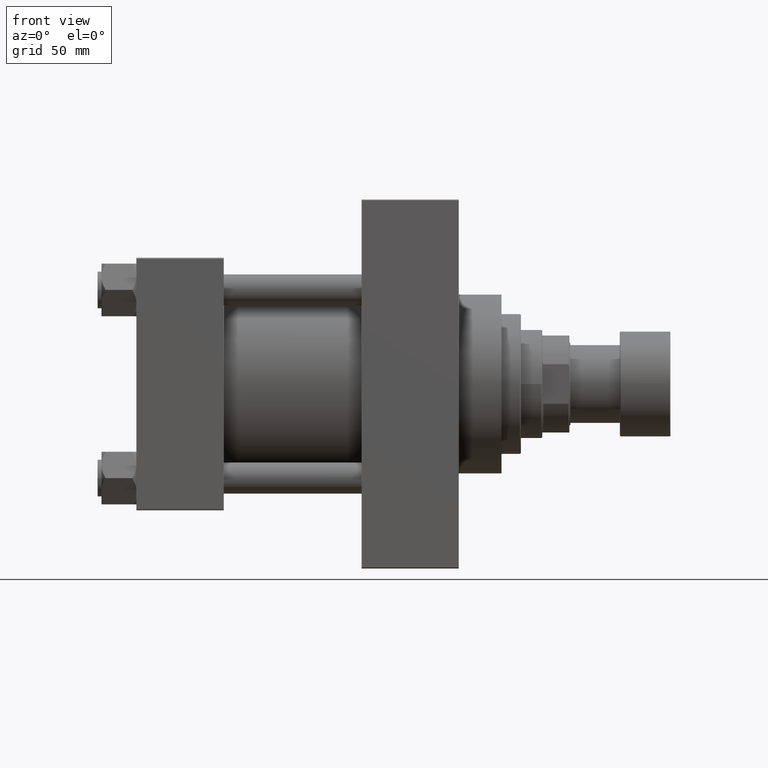
[diagram: clean part render]
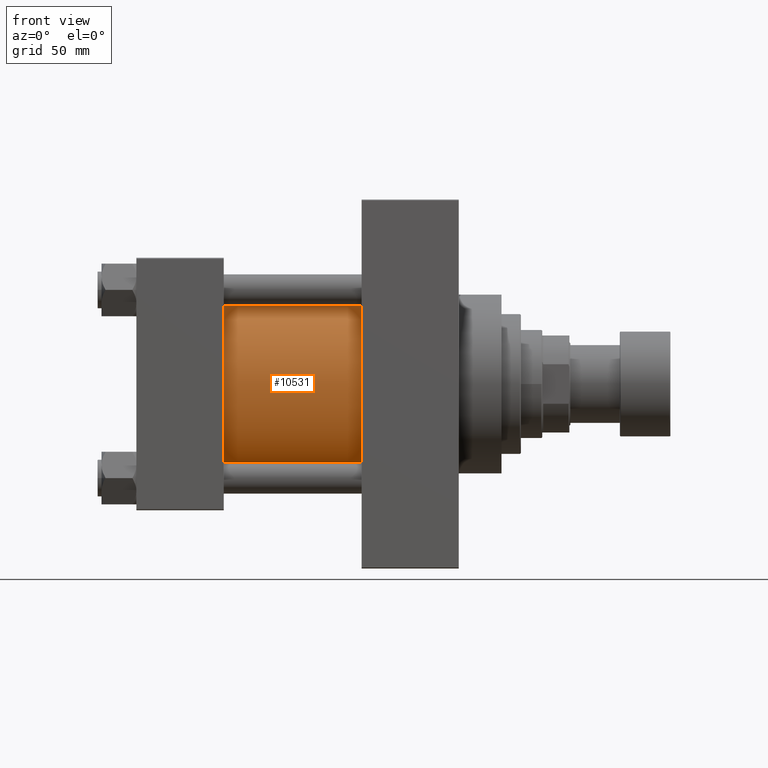
[diagram: same view with one face highlighted and labeled with its STEP entity id]
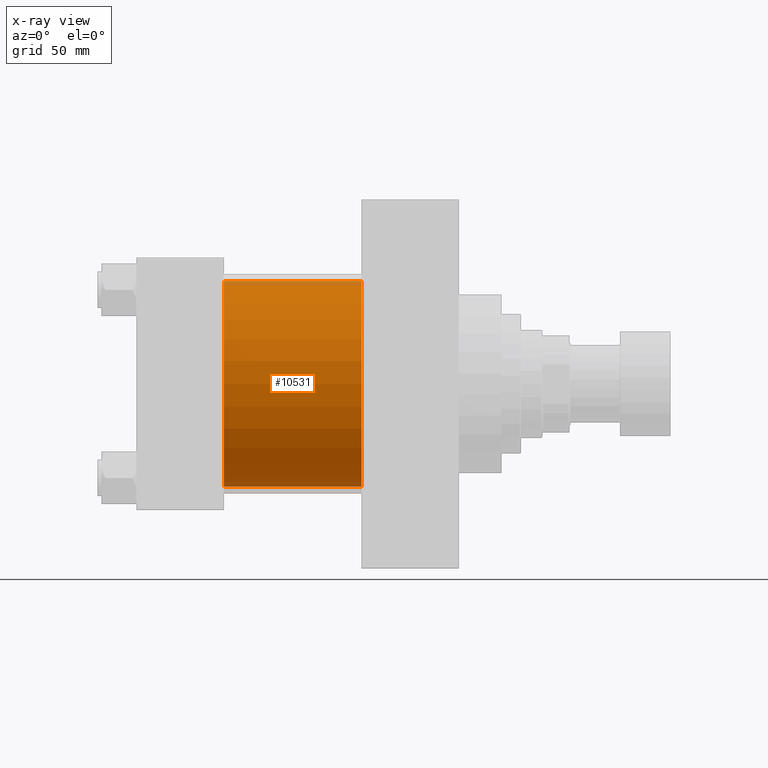
[diagram: x-ray of the same camera — body ghosted, the highlighted face saturated]
A machine part, front view. The second image highlights one B-rep face of the part: STEP entity #10531.
The next image is the same camera in x-ray: the body ghosted, the highlighted face saturated — about 4% of this face is hidden behind the body in this view.
In plain terms, the highlighted cylindrical surface (partial cylindrical patch) has radius 53 mm, axis along (-1, -0, -0).
Its self-contained STEP definition (entity closure, byte-faithful):
#463 = ORIENTED_EDGE ( 'NONE', *, *, #6820, .F. ) ;
#2272 = ORIENTED_EDGE ( 'NONE', *, *, #30312, .T. ) ;
#3360 = LINE ( 'NONE', #19372, #21230 ) ;
#3834 = DIRECTION ( 'NONE',  ( -1.000000000000000000, -0.000000000000000000, -0.000000000000000000 ) ) ;
#6820 = EDGE_CURVE ( 'NONE', #24679, #11016, #3360, .T. ) ;
#7074 = VECTOR ( 'NONE', #19085, 1000.000000000000000 ) ;
#8284 = CARTESIAN_POINT ( 'NONE',  ( 115.9999999999999858, -2.602085213965210642E-15, 53.00000000000000711 ) ) ;
#9305 = EDGE_LOOP ( 'NONE', ( #463, #30117, #2272, #16166 ) ) ;
#10531 = ADVANCED_FACE ( 'NONE', ( #23166 ), #31807, .T. ) ;
#10831 = CARTESIAN_POINT ( 'NONE',  ( 45.00000000000000000, -2.602085213965210642E-15, 53.00000000000000711 ) ) ;
#11016 = VERTEX_POINT ( 'NONE', #45999 ) ;
#12052 = DIRECTION ( 'NONE',  ( 0.000000000000000000, 0.000000000000000000, 1.000000000000000000 ) ) ;
#15107 = EDGE_CURVE ( 'NONE', #27340, #24679, #33269, .T. ) ;
#15513 = DIRECTION ( 'NONE',  ( 0.000000000000000000, 0.000000000000000000, 1.000000000000000000 ) ) ;
#16166 = ORIENTED_EDGE ( 'NONE', *, *, #43742, .T. ) ;
#18952 = AXIS2_PLACEMENT_3D ( 'NONE', #38690, #3834, #15513 ) ;
#19085 = DIRECTION ( 'NONE',  ( -1.000000000000000000, -0.000000000000000000, -0.000000000000000000 ) ) ;
#19372 = CARTESIAN_POINT ( 'NONE',  ( 115.9999999999999858, 3.888542821515762466E-15, -53.00000000000000711 ) ) ;
#21230 = VECTOR ( 'NONE', #31104, 1000.000000000000000 ) ;
#21890 = AXIS2_PLACEMENT_3D ( 'NONE', #45076, #21924, #37451 ) ;
#21924 = DIRECTION ( 'NONE',  ( 1.000000000000000000, 0.000000000000000000, 0.000000000000000000 ) ) ;
#23166 = FACE_OUTER_BOUND ( 'NONE', #9305, .T. ) ;
#24679 = VERTEX_POINT ( 'NONE', #46227 ) ;
#26334 = VERTEX_POINT ( 'NONE', #10831 ) ;
#27089 = DIRECTION ( 'NONE',  ( 1.000000000000000000, -0.000000000000000000, 0.000000000000000000 ) ) ;
#27340 = VERTEX_POINT ( 'NONE', #8284 ) ;
#27986 = CIRCLE ( 'NONE', #47356, 53.00000000000000711 ) ;
#30117 = ORIENTED_EDGE ( 'NONE', *, *, #15107, .F. ) ;
#30312 = EDGE_CURVE ( 'NONE', #27340, #26334, #38201, .T. ) ;
#31104 = DIRECTION ( 'NONE',  ( -1.000000000000000000, -0.000000000000000000, -0.000000000000000000 ) ) ;
#31807 = CYLINDRICAL_SURFACE ( 'NONE', #18952, 53.00000000000000711 ) ;
#33269 = CIRCLE ( 'NONE', #21890, 53.00000000000000711 ) ;
#34469 = CARTESIAN_POINT ( 'NONE',  ( 45.00000000000000000, -2.602085213965210642E-15, 0.000000000000000000 ) ) ;
#37451 = DIRECTION ( 'NONE',  ( 0.000000000000000000, 0.000000000000000000, -1.000000000000000000 ) ) ;
#38201 = LINE ( 'NONE', #49385, #7074 ) ;
#38690 = CARTESIAN_POINT ( 'NONE',  ( 115.9999999999999858, -2.602085213965210642E-15, 0.000000000000000000 ) ) ;
#43742 = EDGE_CURVE ( 'NONE', #26334, #11016, #27986, .T. ) ;
#45076 = CARTESIAN_POINT ( 'NONE',  ( 115.9999999999999858, -2.602085213965210642E-15, 0.000000000000000000 ) ) ;
#45999 = CARTESIAN_POINT ( 'NONE',  ( 45.00000000000000000, 3.888542821515762466E-15, -53.00000000000000711 ) ) ;
#46227 = CARTESIAN_POINT ( 'NONE',  ( 115.9999999999999858, 3.888542821515762466E-15, -53.00000000000000711 ) ) ;
#47356 = AXIS2_PLACEMENT_3D ( 'NONE', #34469, #27089, #12052 ) ;
#49385 = CARTESIAN_POINT ( 'NONE',  ( 115.9999999999999858, -2.602085213965210642E-15, 53.00000000000000711 ) ) ;